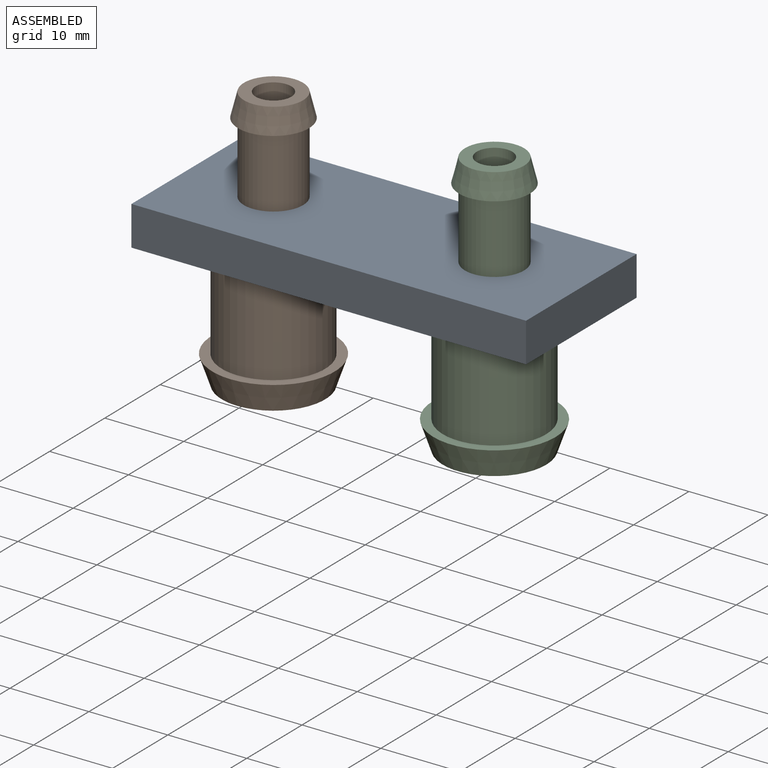
[diagram: assembled view]
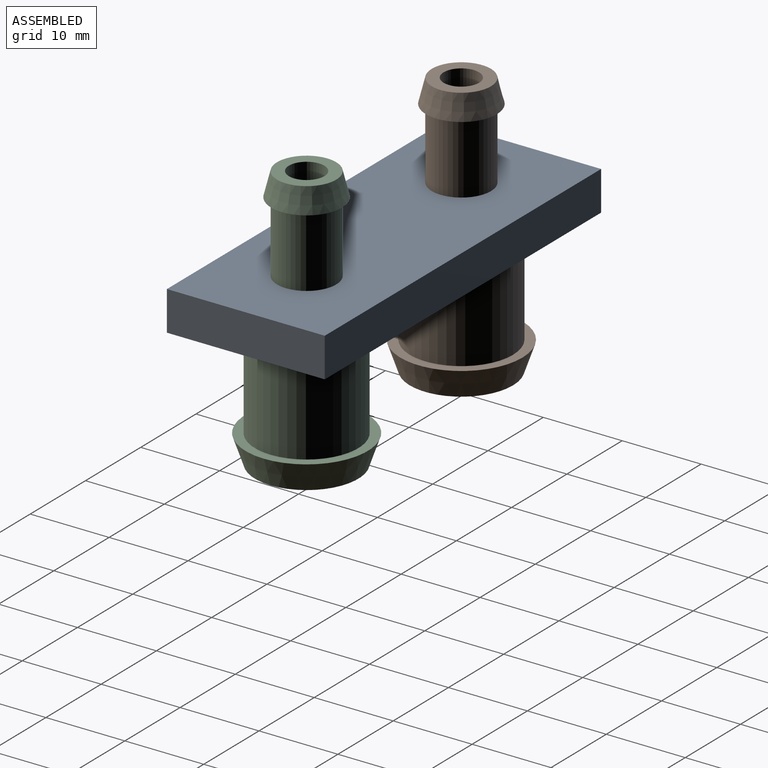
[diagram: assembled view, second angle]
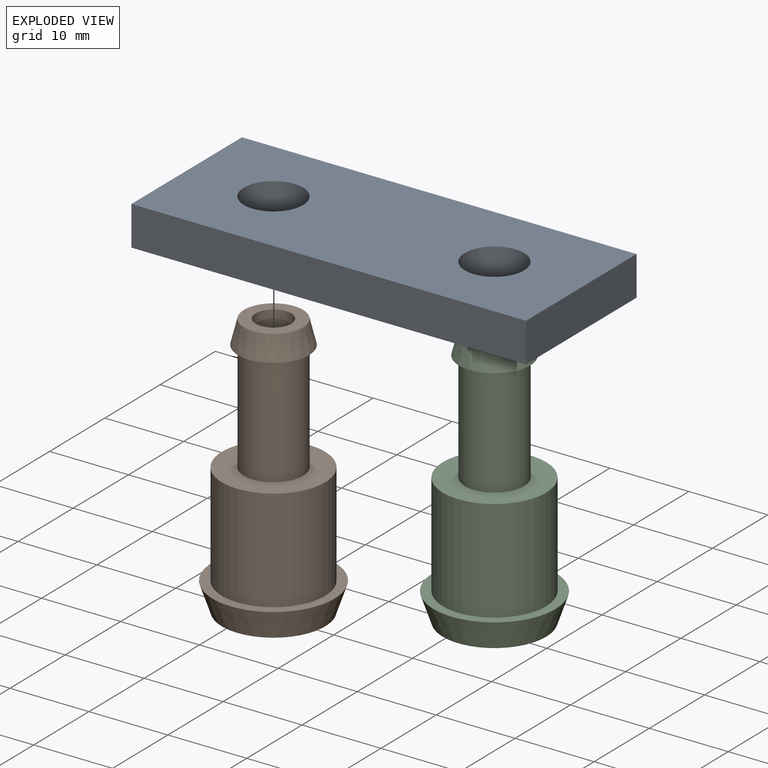
[diagram: exploded view]
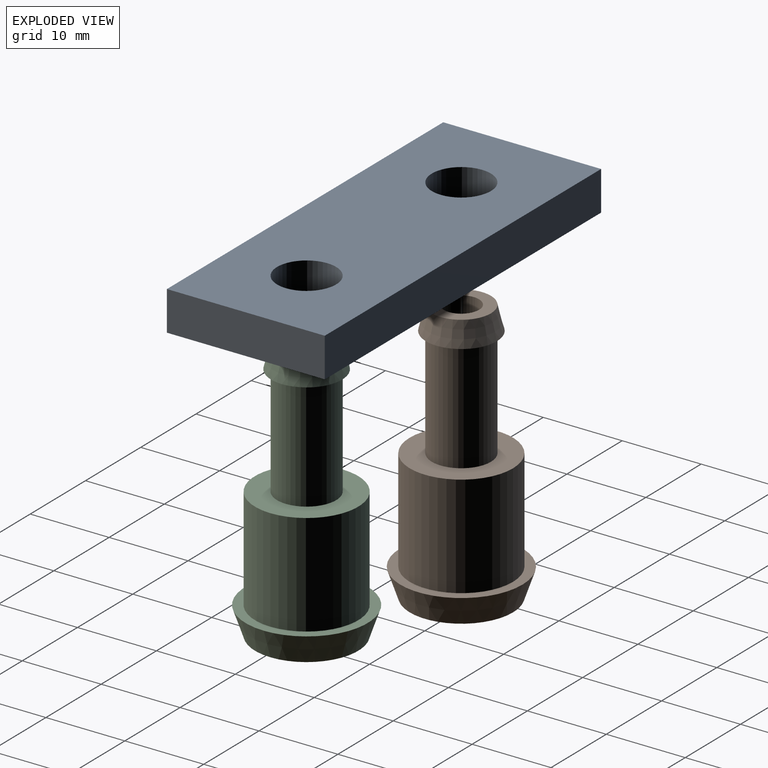
[diagram: exploded view, second angle]
ASSEMBLY  parts=3 mates=4
PART A: 8 faces, bbox 50x20x5 mm
  f0: plane 20x5mm, normal (-1,0,0), area 100mm2, adj f1,f4,f6,f7
  f1: plane 50x5mm, normal (0,-1,0), area 250mm2, adj f0,f2,f6,f7
  f2: plane 20x5mm, normal (1,0,0), area 100mm2, adj f1,f4,f6,f7
  f3: cylinder r=3.75mm len=7.5mm, axis (0,0,-1), area 117.8mm2, adj f6,f7
  f4: plane 50x5mm, normal (0,1,0), area 250mm2, adj f0,f2,f6,f7
  f5: cylinder r=3.75mm len=7.5mm, axis (0,0,-1), area 117.8mm2, adj f6,f7
  f6: plane 50x20mm, normal (0,0,1), area 911.6mm2, adj f0,f1,f2,f3,f4,f5
  f7: plane 50x20mm, normal (0,0,-1), area 911.6mm2, adj f0,f1,f2,f3,f4,f5
PART B: 10 faces, bbox 15.5x15.5x33.5 mm
  f0: plane 13.1x13.1mm, normal (0,0,-1), area 118.9mm2, adj f1,f9
  f1: cone r=6.55mm half-angle=18.9deg, axis (0,0,1), area 166.2mm2, adj f0,f2
  f2: plane 15.5x15.5mm, normal (0,0,1), area 53.9mm2, adj f1,f3
  f3: cylinder r=6.55mm len=13.1mm, axis (0,0,-1), area 535mm2, adj f2,f4
  f4: plane 13.1x13.1mm, normal (0,0,1), area 90.6mm2, adj f3,f5
  f5: cylinder r=3.75mm len=14mm, axis (0,0,-1), area 329.9mm2, adj f4,f6
  f6: plane 9x9mm, normal (0,0,-1), area 19.4mm2, adj f5,f7
  f7: cone r=3.75mm half-angle=14deg, axis (0,0,-1), area 80.1mm2, adj f6,f8
  f8: plane 7.5x7.5mm, normal (0,0,1), area 28.3mm2, adj f7,f9
  f9: cylinder r=2.25mm len=33.5mm, axis (0,0,1), area 473.6mm2, adj f0,f8
PART C: same geometry as B
PLACE A t=(6.71,-0.46,4.82)mm fixed
PLACE B rot(axis=(0,0,-1),90deg) t=(-7.29,-0.46,-11.68)mm
PLACE C t=(20.71,-0.46,-11.68)mm
MATE cylindrical A.f5 <-> C.f5  axis (0,0,-1) through (20.71,-0.46,7.32)mm
MATE cylindrical B.f5 <-> A.f3  axis (0,0,-1) through (-7.29,-0.46,11.82)mm
MATE planar A.f7 <-> B.f1  axis (0,0,-1) through (6.71,-0.46,4.82)mm
MATE planar C.f1 <-> A.f7  axis (0,0,1) through (20.71,-0.46,4.82)mm
